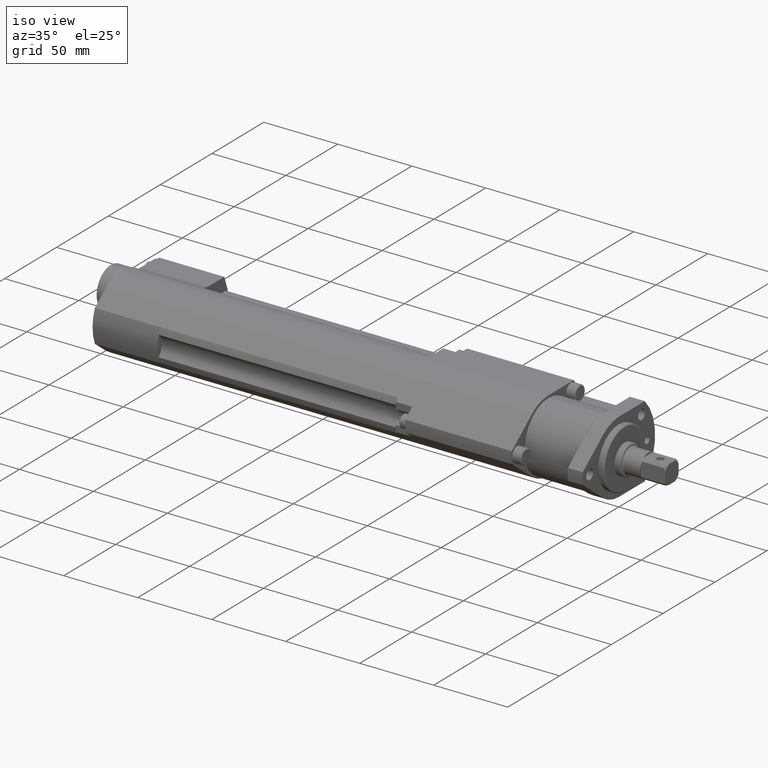
[diagram: clean part render]
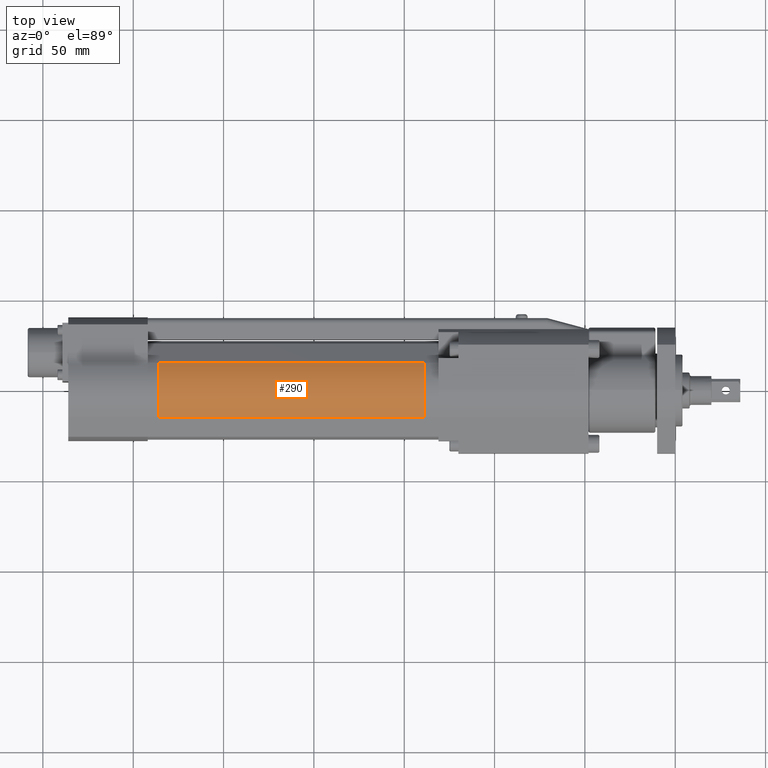
[diagram: tour spotlight — one face highlighted and labeled with its STEP entity id]
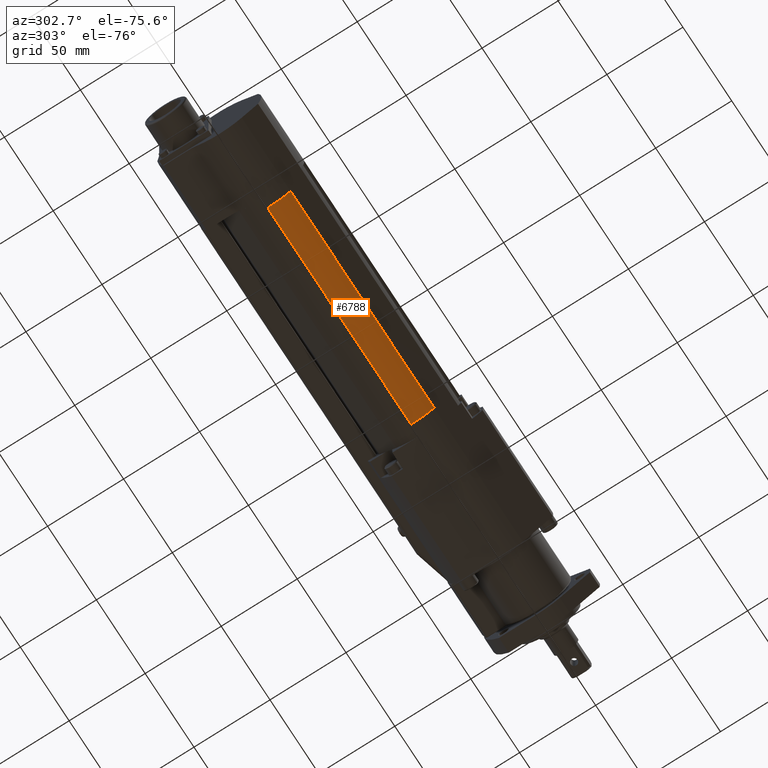
[diagram: tour spotlight — one face highlighted and labeled with its STEP entity id]
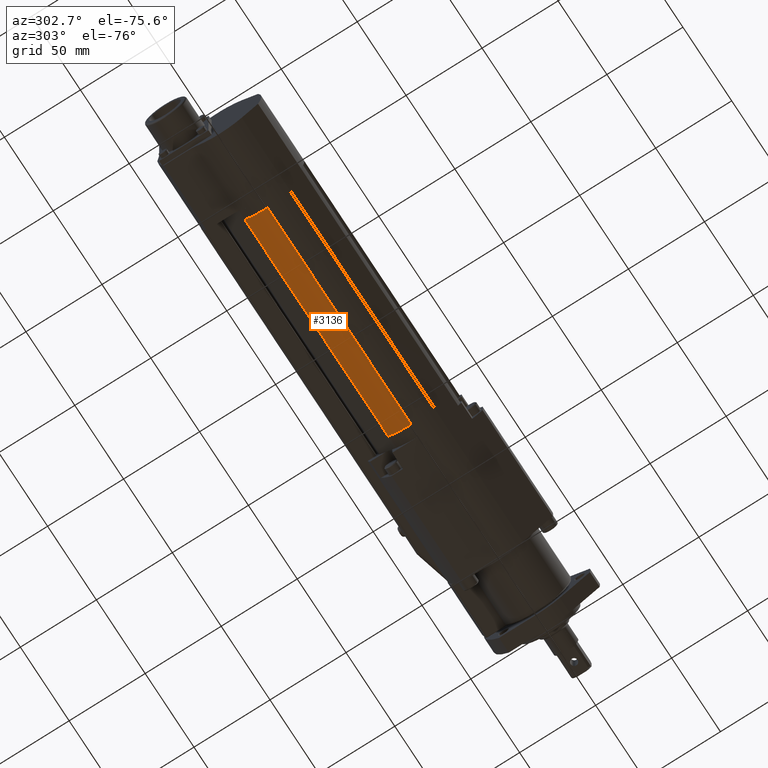
[diagram: tour spotlight — one face highlighted and labeled with its STEP entity id]
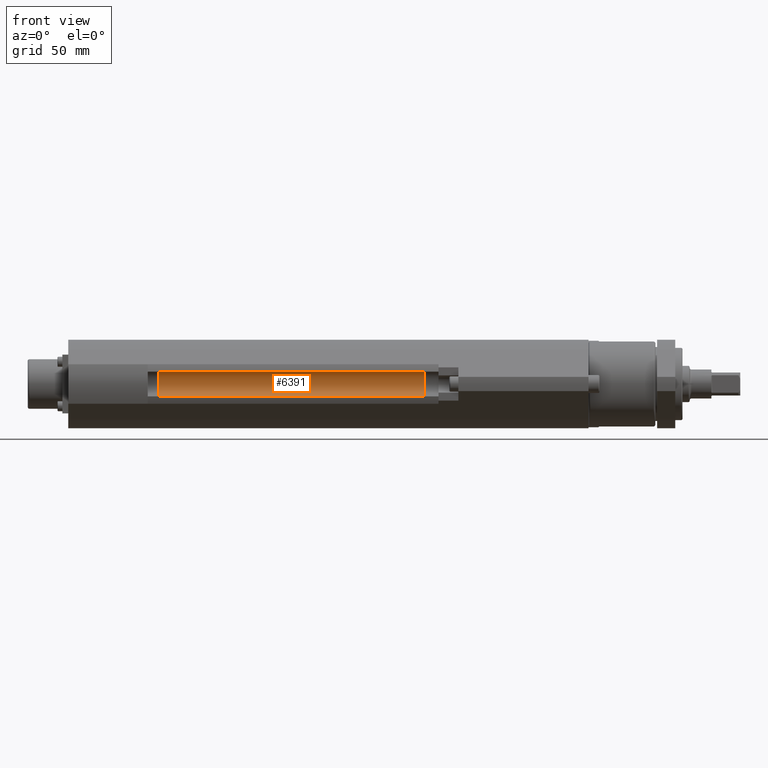
[diagram: tour spotlight — one face highlighted and labeled with its STEP entity id]
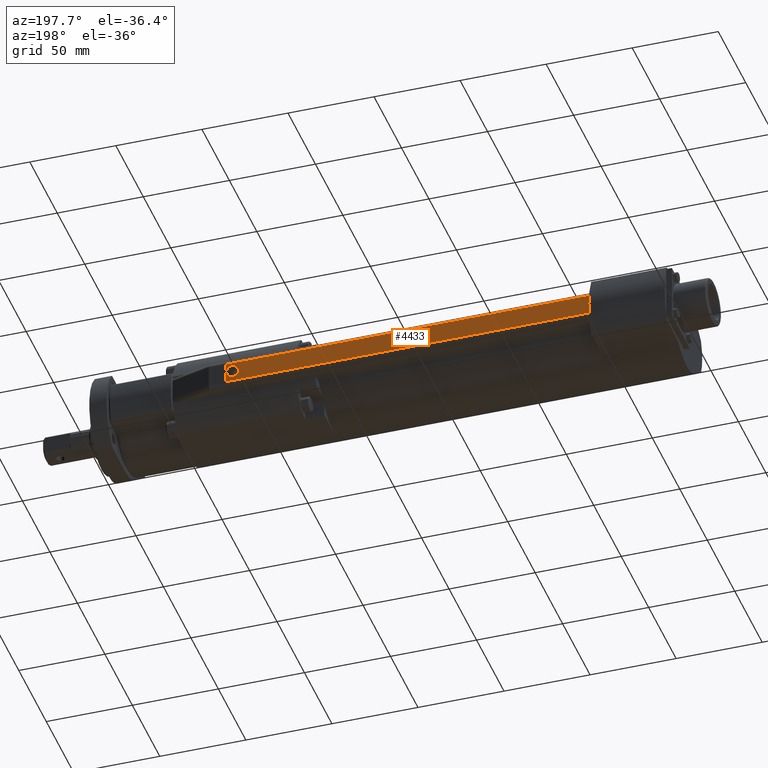
[diagram: tour spotlight — one face highlighted and labeled with its STEP entity id]
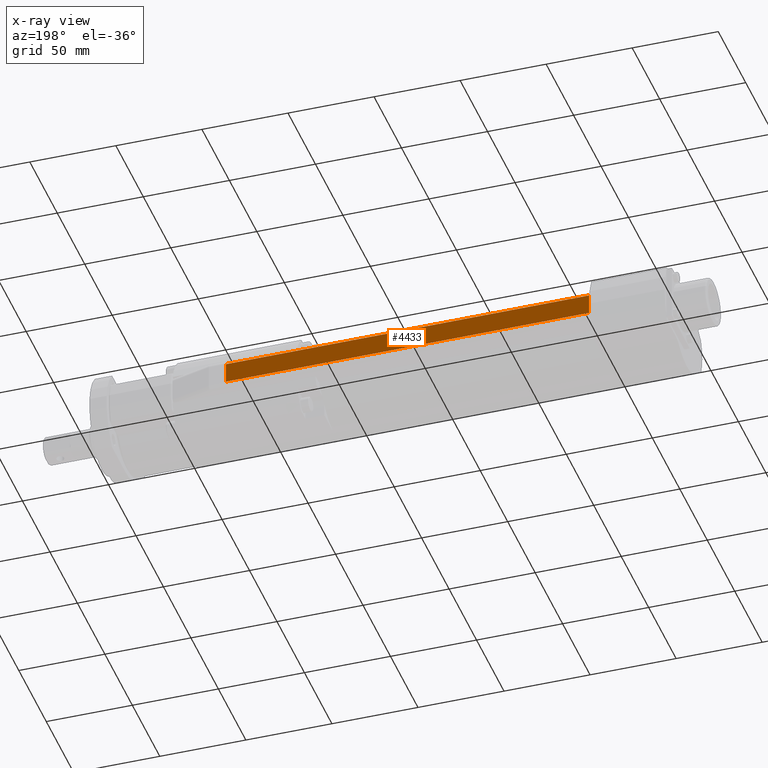
[diagram: x-ray of the same camera — body ghosted, this tour face saturated]
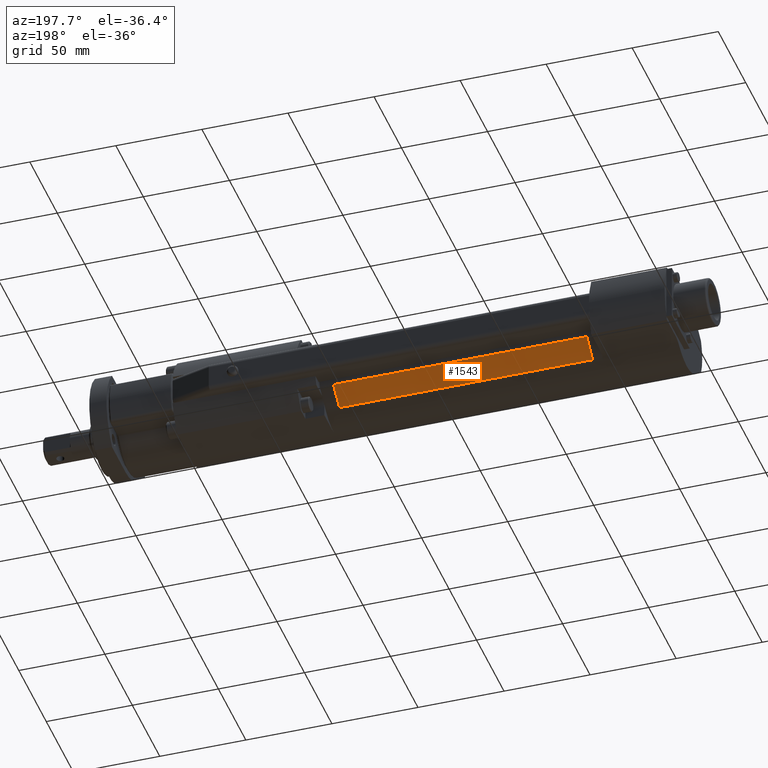
[diagram: tour spotlight — one face highlighted and labeled with its STEP entity id]
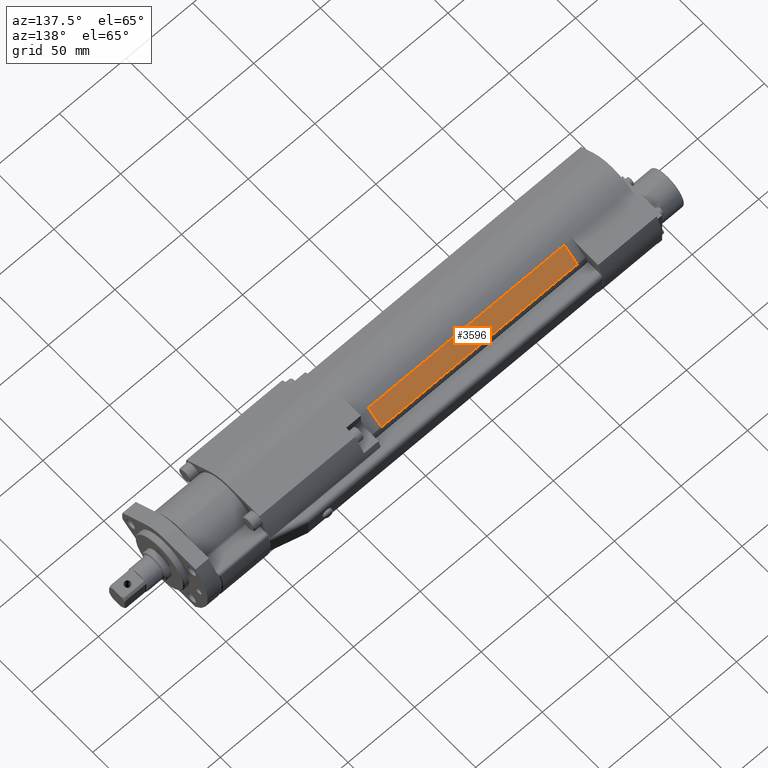
[diagram: tour spotlight — one face highlighted and labeled with its STEP entity id]
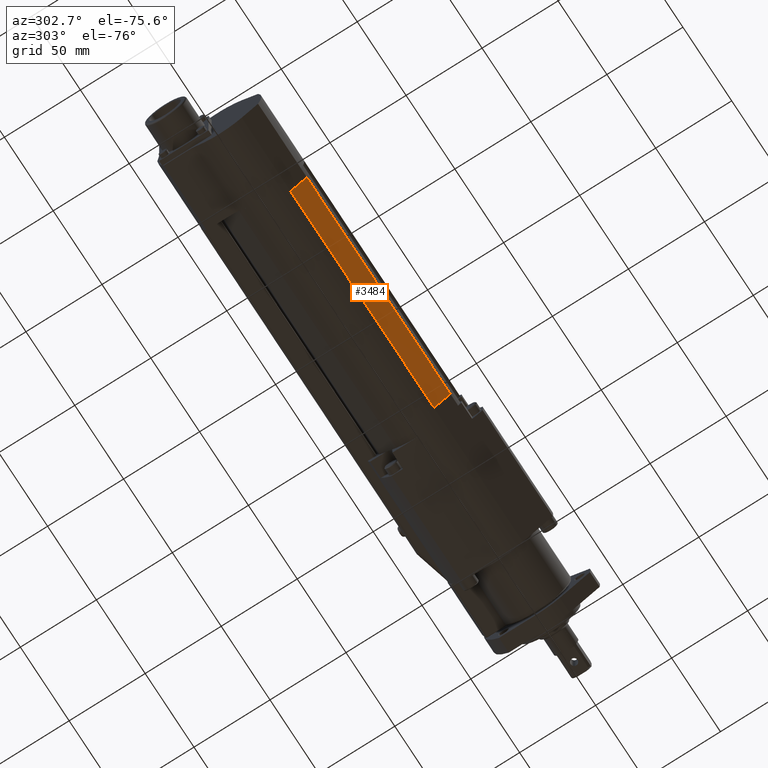
[diagram: tour spotlight — one face highlighted and labeled with its STEP entity id]
A machine part: a face-by-face anatomy tour. The part has 315 B-rep faces; the first image is the clean iso view, then the 8 largest visible faces are spotlighted one at a time (largest first), each with its STEP entity span.

Face 1 — top view, entity #290. In plain terms, the highlighted cylindrical surface (partial cylindrical patch) has radius 24.5 mm, axis along (1, -0, -0).
Definition (entity closure, byte-faithful):
#77 = ORIENTED_EDGE ( 'NONE', *, *, #2574, .T. ) ;
#246 = CARTESIAN_POINT ( 'NONE',  ( -286.0000000000000600, -15.08370614547866000, 19.30626346336466500 ) ) ;
#290 = ADVANCED_FACE ( 'NONE', ( #3501 ), #3282, .T. ) ;
#1392 = AXIS2_PLACEMENT_3D ( 'NONE', #5367, #3924, #8967 ) ;
#1411 = VECTOR ( 'NONE', #2846, 1000.000000000000000 ) ;
#2574 = EDGE_CURVE ( 'NONE', #6530, #5233, #5891, .T. ) ;
#2692 = EDGE_CURVE ( 'NONE', #4344, #5233, #9048, .T. ) ;
#2809 = ORIENTED_EDGE ( 'NONE', *, *, #2692, .F. ) ;
#2846 = DIRECTION ( 'NONE',  ( 1.000000000000000000, -0.0000000000000000000, -0.0000000000000000000 ) ) ;
#3035 = VERTEX_POINT ( 'NONE', #6361 ) ;
#3282 = CYLINDRICAL_SURFACE ( 'NONE', #1392, 24.50000000000000000 ) ;
#3296 = EDGE_CURVE ( 'NONE', #3035, #6530, #5759, .T. ) ;
#3436 = CARTESIAN_POINT ( 'NONE',  ( -139.0000000000000000, 0.0000000000000000000, 0.0000000000000000000 ) ) ;
#3492 = CARTESIAN_POINT ( 'NONE',  ( -286.0000000000000600, 15.08370614547865600, 19.30626346336466500 ) ) ;
#3501 = FACE_OUTER_BOUND ( 'NONE', #8920, .T. ) ;
#3610 = CARTESIAN_POINT ( 'NONE',  ( -139.0000000000000000, 15.08370614547865600, 19.30626346336466500 ) ) ;
#3769 = EDGE_CURVE ( 'NONE', #3035, #4344, #6428, .T. ) ;
#3872 = DIRECTION ( 'NONE',  ( -1.000000000000000000, 0.0000000000000000000, 0.0000000000000000000 ) ) ;
#3924 = DIRECTION ( 'NONE',  ( 1.000000000000000000, -0.0000000000000000000, -0.0000000000000000000 ) ) ;
#3994 = ORIENTED_EDGE ( 'NONE', *, *, #3296, .T. ) ;
#4160 = DIRECTION ( 'NONE',  ( 0.0000000000000000000, 0.0000000000000000000, 1.000000000000000000 ) ) ;
#4239 = AXIS2_PLACEMENT_3D ( 'NONE', #3436, #8489, #4160 ) ;
#4344 = VERTEX_POINT ( 'NONE', #3492 ) ;
#5233 = VERTEX_POINT ( 'NONE', #3610 ) ;
#5236 = ORIENTED_EDGE ( 'NONE', *, *, #3769, .F. ) ;
#5367 = CARTESIAN_POINT ( 'NONE',  ( -286.0000000000000600, 0.0000000000000000000, 0.0000000000000000000 ) ) ;
#5759 = LINE ( 'NONE', #246, #7437 ) ;
#5891 = CIRCLE ( 'NONE', #4239, 24.50000000000000000 ) ;
#6361 = CARTESIAN_POINT ( 'NONE',  ( -286.0000000000000600, -15.08370614547866000, 19.30626346336466500 ) ) ;
#6428 = CIRCLE ( 'NONE', #7386, 24.50000000000000000 ) ;
#6530 = VERTEX_POINT ( 'NONE', #8754 ) ;
#7386 = AXIS2_PLACEMENT_3D ( 'NONE', #8187, #3872, #8927 ) ;
#7408 = DIRECTION ( 'NONE',  ( 1.000000000000000000, -0.0000000000000000000, -0.0000000000000000000 ) ) ;
#7437 = VECTOR ( 'NONE', #7408, 1000.000000000000000 ) ;
#7873 = CARTESIAN_POINT ( 'NONE',  ( -286.0000000000000600, 15.08370614547865600, 19.30626346336466500 ) ) ;
#8187 = CARTESIAN_POINT ( 'NONE',  ( -286.0000000000000600, 0.0000000000000000000, 0.0000000000000000000 ) ) ;
#8489 = DIRECTION ( 'NONE',  ( -1.000000000000000000, 0.0000000000000000000, 0.0000000000000000000 ) ) ;
#8754 = CARTESIAN_POINT ( 'NONE',  ( -139.0000000000000000, -15.08370614547866000, 19.30626346336466500 ) ) ;
#8920 = EDGE_LOOP ( 'NONE', ( #77, #2809, #5236, #3994 ) ) ;
#8927 = DIRECTION ( 'NONE',  ( 0.0000000000000000000, 0.0000000000000000000, 1.000000000000000000 ) ) ;
#8967 = DIRECTION ( 'NONE',  ( 0.0000000000000000000, 0.0000000000000000000, -1.000000000000000000 ) ) ;
#9048 = LINE ( 'NONE', #7873, #1411 ) ;

Face 2 — auxiliary view, entity #6788. In plain terms, the highlighted cylindrical surface (partial cylindrical patch) has radius 24.5 mm, axis along (1, -0, -0).
Definition (entity closure, byte-faithful):
#7 = EDGE_CURVE ( 'NONE', #2189, #3952, #3174, .T. ) ;
#150 = DIRECTION ( 'NONE',  ( 1.000000000000000000, -0.0000000000000000000, -0.0000000000000000000 ) ) ;
#286 = DIRECTION ( 'NONE',  ( 0.0000000000000000000, 0.0000000000000000000, 1.000000000000000000 ) ) ;
#392 = CARTESIAN_POINT ( 'NONE',  ( -139.0000000000000000, 0.0000000000000000000, 0.0000000000000000000 ) ) ;
#548 = CARTESIAN_POINT ( 'NONE',  ( -139.0000000000000000, -15.08370614547865400, -19.30626346336466900 ) ) ;
#851 = EDGE_CURVE ( 'NONE', #8294, #3952, #6647, .T. ) ;
#1024 = VECTOR ( 'NONE', #8787, 1000.000000000000000 ) ;
#1098 = DIRECTION ( 'NONE',  ( 0.0000000000000000000, 0.0000000000000000000, 1.000000000000000000 ) ) ;
#1208 = EDGE_CURVE ( 'NONE', #2787, #2189, #5854, .T. ) ;
#1291 = VECTOR ( 'NONE', #150, 1000.000000000000000 ) ;
#1384 = ORIENTED_EDGE ( 'NONE', *, *, #851, .T. ) ;
#1403 = AXIS2_PLACEMENT_3D ( 'NONE', #1413, #6414, #5690 ) ;
#1413 = CARTESIAN_POINT ( 'NONE',  ( -286.0000000000000600, 0.0000000000000000000, 0.0000000000000000000 ) ) ;
#1552 = EDGE_CURVE ( 'NONE', #2787, #8294, #8662, .T. ) ;
#1637 = CARTESIAN_POINT ( 'NONE',  ( -286.0000000000000600, 0.0000000000000000000, -24.50000000000000000 ) ) ;
#1830 = CYLINDRICAL_SURFACE ( 'NONE', #1403, 24.50000000000000000 ) ;
#2046 = FACE_OUTER_BOUND ( 'NONE', #6433, .T. ) ;
#2189 = VERTEX_POINT ( 'NONE', #4850 ) ;
#2758 = CARTESIAN_POINT ( 'NONE',  ( -139.0000000000000000, 0.0000000000000000000, -24.50000000000000000 ) ) ;
#2787 = VERTEX_POINT ( 'NONE', #3933 ) ;
#2829 = ORIENTED_EDGE ( 'NONE', *, *, #1208, .F. ) ;
#3174 = LINE ( 'NONE', #7312, #1291 ) ;
#3933 = CARTESIAN_POINT ( 'NONE',  ( -286.0000000000000600, 0.0000000000000000000, -24.50000000000000000 ) ) ;
#3952 = VERTEX_POINT ( 'NONE', #548 ) ;
#4513 = ORIENTED_EDGE ( 'NONE', *, *, #7, .F. ) ;
#4545 = DIRECTION ( 'NONE',  ( -1.000000000000000000, 0.0000000000000000000, 0.0000000000000000000 ) ) ;
#4850 = CARTESIAN_POINT ( 'NONE',  ( -286.0000000000000600, -15.08370614547865400, -19.30626346336466900 ) ) ;
#5371 = DIRECTION ( 'NONE',  ( -1.000000000000000000, 0.0000000000000000000, 0.0000000000000000000 ) ) ;
#5690 = DIRECTION ( 'NONE',  ( 0.0000000000000000000, 0.0000000000000000000, -1.000000000000000000 ) ) ;
#5854 = CIRCLE ( 'NONE', #6436, 24.50000000000000000 ) ;
#6414 = DIRECTION ( 'NONE',  ( 1.000000000000000000, -0.0000000000000000000, -0.0000000000000000000 ) ) ;
#6433 = EDGE_LOOP ( 'NONE', ( #2829, #8161, #1384, #4513 ) ) ;
#6436 = AXIS2_PLACEMENT_3D ( 'NONE', #8862, #4545, #286 ) ;
#6647 = CIRCLE ( 'NONE', #8250, 24.50000000000000000 ) ;
#6788 = ADVANCED_FACE ( 'NONE', ( #2046 ), #1830, .T. ) ;
#7312 = CARTESIAN_POINT ( 'NONE',  ( -286.0000000000000600, -15.08370614547865400, -19.30626346336466900 ) ) ;
#8161 = ORIENTED_EDGE ( 'NONE', *, *, #1552, .T. ) ;
#8250 = AXIS2_PLACEMENT_3D ( 'NONE', #392, #5371, #1098 ) ;
#8294 = VERTEX_POINT ( 'NONE', #2758 ) ;
#8662 = LINE ( 'NONE', #1637, #1024 ) ;
#8787 = DIRECTION ( 'NONE',  ( 1.000000000000000000, -0.0000000000000000000, -0.0000000000000000000 ) ) ;
#8862 = CARTESIAN_POINT ( 'NONE',  ( -286.0000000000000600, 0.0000000000000000000, 0.0000000000000000000 ) ) ;

Face 3 — auxiliary view, entity #3136. In plain terms, the highlighted cylindrical surface (partial cylindrical patch) has radius 24.5 mm, axis along (1, -0, -0).
Definition (entity closure, byte-faithful):
#158 = DIRECTION ( 'NONE',  ( -1.000000000000000000, 0.0000000000000000000, 0.0000000000000000000 ) ) ;
#492 = CARTESIAN_POINT ( 'NONE',  ( -139.0000000000000000, 0.0000000000000000000, 0.0000000000000000000 ) ) ;
#1024 = VECTOR ( 'NONE', #8787, 1000.000000000000000 ) ;
#1099 = EDGE_CURVE ( 'NONE', #1700, #2787, #2698, .T. ) ;
#1203 = DIRECTION ( 'NONE',  ( 0.0000000000000000000, 0.0000000000000000000, 1.000000000000000000 ) ) ;
#1249 = EDGE_LOOP ( 'NONE', ( #4807, #2981, #3605, #1301 ) ) ;
#1301 = ORIENTED_EDGE ( 'NONE', *, *, #2085, .T. ) ;
#1399 = CYLINDRICAL_SURFACE ( 'NONE', #6319, 24.50000000000000000 ) ;
#1552 = EDGE_CURVE ( 'NONE', #2787, #8294, #8662, .T. ) ;
#1630 = AXIS2_PLACEMENT_3D ( 'NONE', #4420, #158, #5140 ) ;
#1637 = CARTESIAN_POINT ( 'NONE',  ( -286.0000000000000600, 0.0000000000000000000, -24.50000000000000000 ) ) ;
#1697 = EDGE_CURVE ( 'NONE', #1700, #5259, #3466, .T. ) ;
#1700 = VERTEX_POINT ( 'NONE', #2509 ) ;
#2085 = EDGE_CURVE ( 'NONE', #5259, #8294, #2462, .T. ) ;
#2462 = CIRCLE ( 'NONE', #5092, 24.50000000000000000 ) ;
#2509 = CARTESIAN_POINT ( 'NONE',  ( -286.0000000000000600, 15.08370614547865600, -19.30626346336466500 ) ) ;
#2698 = CIRCLE ( 'NONE', #1630, 24.50000000000000000 ) ;
#2758 = CARTESIAN_POINT ( 'NONE',  ( -139.0000000000000000, 0.0000000000000000000, -24.50000000000000000 ) ) ;
#2787 = VERTEX_POINT ( 'NONE', #3933 ) ;
#2879 = CARTESIAN_POINT ( 'NONE',  ( -286.0000000000000600, 0.0000000000000000000, 0.0000000000000000000 ) ) ;
#2981 = ORIENTED_EDGE ( 'NONE', *, *, #1099, .F. ) ;
#3136 = ADVANCED_FACE ( 'NONE', ( #5186 ), #1399, .T. ) ;
#3466 = LINE ( 'NONE', #8226, #5386 ) ;
#3605 = ORIENTED_EDGE ( 'NONE', *, *, #1697, .T. ) ;
#3933 = CARTESIAN_POINT ( 'NONE',  ( -286.0000000000000600, 0.0000000000000000000, -24.50000000000000000 ) ) ;
#4420 = CARTESIAN_POINT ( 'NONE',  ( -286.0000000000000600, 0.0000000000000000000, 0.0000000000000000000 ) ) ;
#4807 = ORIENTED_EDGE ( 'NONE', *, *, #1552, .F. ) ;
#5092 = AXIS2_PLACEMENT_3D ( 'NONE', #492, #5480, #1203 ) ;
#5140 = DIRECTION ( 'NONE',  ( 0.0000000000000000000, 0.0000000000000000000, 1.000000000000000000 ) ) ;
#5186 = FACE_OUTER_BOUND ( 'NONE', #1249, .T. ) ;
#5259 = VERTEX_POINT ( 'NONE', #5814 ) ;
#5386 = VECTOR ( 'NONE', #7524, 1000.000000000000000 ) ;
#5480 = DIRECTION ( 'NONE',  ( -1.000000000000000000, 0.0000000000000000000, 0.0000000000000000000 ) ) ;
#5814 = CARTESIAN_POINT ( 'NONE',  ( -139.0000000000000000, 15.08370614547865600, -19.30626346336466500 ) ) ;
#6319 = AXIS2_PLACEMENT_3D ( 'NONE', #2879, #6480, #7915 ) ;
#6480 = DIRECTION ( 'NONE',  ( 1.000000000000000000, -0.0000000000000000000, -0.0000000000000000000 ) ) ;
#7524 = DIRECTION ( 'NONE',  ( 1.000000000000000000, -0.0000000000000000000, -0.0000000000000000000 ) ) ;
#7915 = DIRECTION ( 'NONE',  ( 0.0000000000000000000, 0.0000000000000000000, -1.000000000000000000 ) ) ;
#8226 = CARTESIAN_POINT ( 'NONE',  ( -286.0000000000000600, 15.08370614547865600, -19.30626346336466500 ) ) ;
#8294 = VERTEX_POINT ( 'NONE', #2758 ) ;
#8662 = LINE ( 'NONE', #1637, #1024 ) ;
#8787 = DIRECTION ( 'NONE',  ( 1.000000000000000000, -0.0000000000000000000, -0.0000000000000000000 ) ) ;

Face 4 — front view, entity #6391. In plain terms, the highlighted cylindrical surface (edge-blend (fillet) strip) has radius 9 mm, axis along (1, -0, -0).
Definition (entity closure, byte-faithful):
#110 = CARTESIAN_POINT ( 'NONE',  ( -139.0000000000000000, -27.15151515151514900, -6.840703544010901600 ) ) ;
#125 = CARTESIAN_POINT ( 'NONE',  ( -139.0000000000000000, -33.00000000000000000, 0.0000000000000000000 ) ) ;
#131 = LINE ( 'NONE', #2830, #3688 ) ;
#144 = EDGE_LOOP ( 'NONE', ( #6878, #6791, #651, #5068 ) ) ;
#176 = VERTEX_POINT ( 'NONE', #4480 ) ;
#363 = CIRCLE ( 'NONE', #3600, 9.000000000000010700 ) ;
#651 = ORIENTED_EDGE ( 'NONE', *, *, #8625, .F. ) ;
#742 = DIRECTION ( 'NONE',  ( 1.000000000000000000, -0.0000000000000000000, -0.0000000000000000000 ) ) ;
#849 = DIRECTION ( 'NONE',  ( 0.0000000000000000000, 0.0000000000000000000, 1.000000000000000000 ) ) ;
#1747 = DIRECTION ( 'NONE',  ( 1.000000000000000000, -0.0000000000000000000, -0.0000000000000000000 ) ) ;
#1969 = EDGE_CURVE ( 'NONE', #9259, #9189, #9113, .T. ) ;
#2169 = DIRECTION ( 'NONE',  ( 0.0000000000000000000, 0.0000000000000000000, -1.000000000000000000 ) ) ;
#2225 = CIRCLE ( 'NONE', #7374, 9.000000000000010700 ) ;
#2830 = CARTESIAN_POINT ( 'NONE',  ( -286.0000000000000600, -27.15151515151514500, 6.840703544010898100 ) ) ;
#2857 = DIRECTION ( 'NONE',  ( 1.000000000000000000, -0.0000000000000000000, -0.0000000000000000000 ) ) ;
#3376 = FACE_OUTER_BOUND ( 'NONE', #144, .T. ) ;
#3600 = AXIS2_PLACEMENT_3D ( 'NONE', #125, #5114, #849 ) ;
#3688 = VECTOR ( 'NONE', #2857, 1000.000000000000000 ) ;
#3781 = DIRECTION ( 'NONE',  ( 1.000000000000000000, -0.0000000000000000000, -0.0000000000000000000 ) ) ;
#4454 = EDGE_CURVE ( 'NONE', #8801, #176, #131, .T. ) ;
#4480 = CARTESIAN_POINT ( 'NONE',  ( -139.0000000000000000, -27.15151515151514500, 6.840703544010898100 ) ) ;
#4834 = EDGE_CURVE ( 'NONE', #9189, #176, #363, .T. ) ;
#4835 = CYLINDRICAL_SURFACE ( 'NONE', #5587, 9.000000000000010700 ) ;
#5068 = ORIENTED_EDGE ( 'NONE', *, *, #1969, .T. ) ;
#5114 = DIRECTION ( 'NONE',  ( 1.000000000000000000, -0.0000000000000000000, -0.0000000000000000000 ) ) ;
#5587 = AXIS2_PLACEMENT_3D ( 'NONE', #6471, #742, #2169 ) ;
#5931 = CARTESIAN_POINT ( 'NONE',  ( -286.0000000000000600, -27.15151515151514900, -6.840703544010901600 ) ) ;
#6034 = CARTESIAN_POINT ( 'NONE',  ( -286.0000000000000600, -33.00000000000000000, 0.0000000000000000000 ) ) ;
#6391 = ADVANCED_FACE ( 'NONE', ( #3376 ), #4835, .F. ) ;
#6471 = CARTESIAN_POINT ( 'NONE',  ( -286.0000000000000600, -33.00000000000000000, 0.0000000000000000000 ) ) ;
#6757 = DIRECTION ( 'NONE',  ( 0.0000000000000000000, 0.0000000000000000000, 1.000000000000000000 ) ) ;
#6791 = ORIENTED_EDGE ( 'NONE', *, *, #4454, .F. ) ;
#6878 = ORIENTED_EDGE ( 'NONE', *, *, #4834, .T. ) ;
#6967 = VECTOR ( 'NONE', #3781, 1000.000000000000000 ) ;
#7351 = CARTESIAN_POINT ( 'NONE',  ( -286.0000000000000600, -27.15151515151514900, -6.840703544010901600 ) ) ;
#7374 = AXIS2_PLACEMENT_3D ( 'NONE', #6034, #1747, #6757 ) ;
#7663 = CARTESIAN_POINT ( 'NONE',  ( -286.0000000000000600, -27.15151515151514500, 6.840703544010898100 ) ) ;
#8625 = EDGE_CURVE ( 'NONE', #9259, #8801, #2225, .T. ) ;
#8801 = VERTEX_POINT ( 'NONE', #7663 ) ;
#9113 = LINE ( 'NONE', #5931, #6967 ) ;
#9189 = VERTEX_POINT ( 'NONE', #110 ) ;
#9259 = VERTEX_POINT ( 'NONE', #7351 ) ;

Face 5 — auxiliary view, entity #4433. An x-ray twin of the same camera follows (body ghosted, this face saturated) — the face is partly hidden behind the body. In plain terms, the highlighted planar face has unit normal (-0, -1, 0).
Definition (entity closure, byte-faithful):
#9 = LINE ( 'NONE', #1594, #7175 ) ;
#165 = CARTESIAN_POINT ( 'NONE',  ( -313.6333076527839700, 40.00000000000027700, 5.999999999999999100 ) ) ;
#570 = VERTEX_POINT ( 'NONE', #3401 ) ;
#708 = CARTESIAN_POINT ( 'NONE',  ( -292.0000000000000600, 40.00000000000024900, -5.999999999999999100 ) ) ;
#723 = DIRECTION ( 'NONE',  ( -1.156482317317871500E-015, -1.000000000000000000, 0.0000000000000000000 ) ) ;
#1594 = CARTESIAN_POINT ( 'NONE',  ( -81.00000000000000000, 40.00000000000000700, 5.999999999999999100 ) ) ;
#2118 = VECTOR ( 'NONE', #9300, 1000.000000000000000 ) ;
#2148 = VERTEX_POINT ( 'NONE', #4095 ) ;
#2195 = EDGE_LOOP ( 'NONE', ( #2669, #3289, #7045, #4915 ) ) ;
#2669 = ORIENTED_EDGE ( 'NONE', *, *, #8365, .F. ) ;
#2734 = VERTEX_POINT ( 'NONE', #708 ) ;
#3289 = ORIENTED_EDGE ( 'NONE', *, *, #7932, .T. ) ;
#3401 = CARTESIAN_POINT ( 'NONE',  ( -81.00000000000000000, 40.00000000000000700, -6.000000000000000000 ) ) ;
#3798 = LINE ( 'NONE', #165, #7399 ) ;
#3926 = FACE_OUTER_BOUND ( 'NONE', #2195, .T. ) ;
#4016 = LINE ( 'NONE', #7129, #2118 ) ;
#4095 = CARTESIAN_POINT ( 'NONE',  ( -292.0000000000000600, 40.00000000000024900, 5.999999999999999100 ) ) ;
#4136 = VECTOR ( 'NONE', #5798, 1000.000000000000000 ) ;
#4270 = PLANE ( 'NONE',  #6865 ) ;
#4433 = ADVANCED_FACE ( 'NONE', ( #3926 ), #4270, .F. ) ;
#4833 = EDGE_CURVE ( 'NONE', #2734, #570, #6297, .T. ) ;
#4915 = ORIENTED_EDGE ( 'NONE', *, *, #4833, .F. ) ;
#5150 = DIRECTION ( 'NONE',  ( 1.000000000000000000, -1.156482317317871500E-015, -0.0000000000000000000 ) ) ;
#5730 = DIRECTION ( 'NONE',  ( 1.000000000000000000, -1.156482317317871500E-015, 0.0000000000000000000 ) ) ;
#5798 = DIRECTION ( 'NONE',  ( 1.000000000000000000, -1.156482317317871500E-015, -0.0000000000000000000 ) ) ;
#6297 = LINE ( 'NONE', #6554, #4136 ) ;
#6462 = CARTESIAN_POINT ( 'NONE',  ( -81.00000000000000000, 40.00000000000000700, 5.999999999999999100 ) ) ;
#6554 = CARTESIAN_POINT ( 'NONE',  ( -313.6333076527839700, 40.00000000000027700, -6.000000000000000000 ) ) ;
#6865 = AXIS2_PLACEMENT_3D ( 'NONE', #9305, #723, #5730 ) ;
#7045 = ORIENTED_EDGE ( 'NONE', *, *, #7979, .T. ) ;
#7129 = CARTESIAN_POINT ( 'NONE',  ( -292.0000000000000600, 40.00000000000024900, 5.999999999999999100 ) ) ;
#7175 = VECTOR ( 'NONE', #8780, 1000.000000000000000 ) ;
#7399 = VECTOR ( 'NONE', #5150, 1000.000000000000000 ) ;
#7598 = VERTEX_POINT ( 'NONE', #6462 ) ;
#7932 = EDGE_CURVE ( 'NONE', #2148, #7598, #3798, .T. ) ;
#7979 = EDGE_CURVE ( 'NONE', #7598, #570, #9, .T. ) ;
#8365 = EDGE_CURVE ( 'NONE', #2148, #2734, #4016, .T. ) ;
#8780 = DIRECTION ( 'NONE',  ( 0.0000000000000000000, 0.0000000000000000000, -1.000000000000000000 ) ) ;
#9300 = DIRECTION ( 'NONE',  ( 0.0000000000000000000, 0.0000000000000000000, -1.000000000000000000 ) ) ;
#9305 = CARTESIAN_POINT ( 'NONE',  ( -313.6333076527839700, 40.00000000000027700, 5.999999999999999100 ) ) ;

Face 6 — auxiliary view, entity #1543. In plain terms, the highlighted planar face has unit normal (0, -0.6157, 0.788).
Definition (entity closure, byte-faithful):
#194 = PLANE ( 'NONE',  #450 ) ;
#450 = AXIS2_PLACEMENT_3D ( 'NONE', #5192, #917, #5921 ) ;
#493 = LINE ( 'NONE', #6236, #5969 ) ;
#580 = ORIENTED_EDGE ( 'NONE', *, *, #6256, .F. ) ;
#917 = DIRECTION ( 'NONE',  ( 0.0000000000000000000, -0.6156614753256595100, 0.7880107536067210100 ) ) ;
#1261 = VECTOR ( 'NONE', #3022, 1000.000000000000000 ) ;
#1480 = FACE_OUTER_BOUND ( 'NONE', #6966, .T. ) ;
#1536 = EDGE_CURVE ( 'NONE', #7569, #3182, #3144, .T. ) ;
#1543 = ADVANCED_FACE ( 'NONE', ( #1480 ), #194, .F. ) ;
#1697 = EDGE_CURVE ( 'NONE', #1700, #5259, #3466, .T. ) ;
#1700 = VERTEX_POINT ( 'NONE', #2509 ) ;
#1742 = VECTOR ( 'NONE', #6510, 1000.000000000000000 ) ;
#2191 = LINE ( 'NONE', #4319, #1742 ) ;
#2209 = CARTESIAN_POINT ( 'NONE',  ( -139.0000000000000000, 25.76553998420780500, -10.96070022043248200 ) ) ;
#2509 = CARTESIAN_POINT ( 'NONE',  ( -286.0000000000000600, 15.08370614547865600, -19.30626346336466500 ) ) ;
#3022 = DIRECTION ( 'NONE',  ( 1.000000000000000000, -0.0000000000000000000, -0.0000000000000000000 ) ) ;
#3144 = LINE ( 'NONE', #5157, #1261 ) ;
#3182 = VERTEX_POINT ( 'NONE', #2209 ) ;
#3466 = LINE ( 'NONE', #8226, #5386 ) ;
#4319 = CARTESIAN_POINT ( 'NONE',  ( -139.0000000000000000, 25.76553998420780500, -10.96070022043248200 ) ) ;
#4403 = ORIENTED_EDGE ( 'NONE', *, *, #9176, .T. ) ;
#4557 = ORIENTED_EDGE ( 'NONE', *, *, #1697, .F. ) ;
#5157 = CARTESIAN_POINT ( 'NONE',  ( -286.0000000000000600, 25.76553998420780500, -10.96070022043248200 ) ) ;
#5192 = CARTESIAN_POINT ( 'NONE',  ( -286.0000000000000600, 25.76553998420780500, -10.96070022043248200 ) ) ;
#5259 = VERTEX_POINT ( 'NONE', #5814 ) ;
#5386 = VECTOR ( 'NONE', #7524, 1000.000000000000000 ) ;
#5489 = DIRECTION ( 'NONE',  ( 0.0000000000000000000, -0.7880107536067210100, -0.6156614753256595100 ) ) ;
#5814 = CARTESIAN_POINT ( 'NONE',  ( -139.0000000000000000, 15.08370614547865600, -19.30626346336466500 ) ) ;
#5921 = DIRECTION ( 'NONE',  ( 0.0000000000000000000, -0.7880107536067210100, -0.6156614753256595100 ) ) ;
#5969 = VECTOR ( 'NONE', #5489, 1000.000000000000000 ) ;
#6236 = CARTESIAN_POINT ( 'NONE',  ( -286.0000000000000600, 25.76553998420780500, -10.96070022043248200 ) ) ;
#6256 = EDGE_CURVE ( 'NONE', #7569, #1700, #493, .T. ) ;
#6510 = DIRECTION ( 'NONE',  ( 0.0000000000000000000, -0.7880107536067210100, -0.6156614753256595100 ) ) ;
#6966 = EDGE_LOOP ( 'NONE', ( #4403, #4557, #580, #8701 ) ) ;
#7524 = DIRECTION ( 'NONE',  ( 1.000000000000000000, -0.0000000000000000000, -0.0000000000000000000 ) ) ;
#7569 = VERTEX_POINT ( 'NONE', #8567 ) ;
#8226 = CARTESIAN_POINT ( 'NONE',  ( -286.0000000000000600, 15.08370614547865600, -19.30626346336466500 ) ) ;
#8567 = CARTESIAN_POINT ( 'NONE',  ( -286.0000000000000600, 25.76553998420780500, -10.96070022043248200 ) ) ;
#8701 = ORIENTED_EDGE ( 'NONE', *, *, #1536, .T. ) ;
#9176 = EDGE_CURVE ( 'NONE', #3182, #5259, #2191, .T. ) ;

Face 7 — auxiliary view, entity #3596. In plain terms, the highlighted planar face has unit normal (0, -0.6157, -0.788).
Definition (entity closure, byte-faithful):
#711 = VECTOR ( 'NONE', #5193, 1000.000000000000100 ) ;
#824 = DIRECTION ( 'NONE',  ( 0.0000000000000000000, -0.6156614753256594000, -0.7880107536067211300 ) ) ;
#1070 = ORIENTED_EDGE ( 'NONE', *, *, #2692, .T. ) ;
#1411 = VECTOR ( 'NONE', #2846, 1000.000000000000000 ) ;
#1481 = LINE ( 'NONE', #7707, #5048 ) ;
#1523 = CARTESIAN_POINT ( 'NONE',  ( -286.0000000000000600, 15.08370614547865600, 19.30626346336466500 ) ) ;
#2447 = VERTEX_POINT ( 'NONE', #3259 ) ;
#2692 = EDGE_CURVE ( 'NONE', #4344, #5233, #9048, .T. ) ;
#2846 = DIRECTION ( 'NONE',  ( 1.000000000000000000, -0.0000000000000000000, -0.0000000000000000000 ) ) ;
#3060 = AXIS2_PLACEMENT_3D ( 'NONE', #1523, #824, #5833 ) ;
#3065 = CARTESIAN_POINT ( 'NONE',  ( -139.0000000000000000, 15.08370614547865600, 19.30626346336466500 ) ) ;
#3259 = CARTESIAN_POINT ( 'NONE',  ( -286.0000000000000600, 25.76553998420780500, 10.96070022043247900 ) ) ;
#3492 = CARTESIAN_POINT ( 'NONE',  ( -286.0000000000000600, 15.08370614547865600, 19.30626346336466500 ) ) ;
#3596 = ADVANCED_FACE ( 'NONE', ( #9026 ), #5100, .F. ) ;
#3610 = CARTESIAN_POINT ( 'NONE',  ( -139.0000000000000000, 15.08370614547865600, 19.30626346336466500 ) ) ;
#3685 = EDGE_CURVE ( 'NONE', #5233, #7154, #8107, .T. ) ;
#3922 = DIRECTION ( 'NONE',  ( 0.0000000000000000000, 0.7880107536067211300, -0.6156614753256594000 ) ) ;
#4301 = EDGE_CURVE ( 'NONE', #2447, #7154, #1481, .T. ) ;
#4344 = VERTEX_POINT ( 'NONE', #3492 ) ;
#4735 = EDGE_CURVE ( 'NONE', #4344, #2447, #6969, .T. ) ;
#5041 = VECTOR ( 'NONE', #3922, 1000.000000000000100 ) ;
#5048 = VECTOR ( 'NONE', #9170, 1000.000000000000000 ) ;
#5100 = PLANE ( 'NONE',  #3060 ) ;
#5193 = DIRECTION ( 'NONE',  ( 0.0000000000000000000, 0.7880107536067211300, -0.6156614753256594000 ) ) ;
#5233 = VERTEX_POINT ( 'NONE', #3610 ) ;
#5392 = CARTESIAN_POINT ( 'NONE',  ( -139.0000000000000000, 25.76553998420780500, 10.96070022043247900 ) ) ;
#5833 = DIRECTION ( 'NONE',  ( 0.0000000000000000000, 0.7880107536067211300, -0.6156614753256594000 ) ) ;
#5884 = ORIENTED_EDGE ( 'NONE', *, *, #4301, .F. ) ;
#6540 = ORIENTED_EDGE ( 'NONE', *, *, #3685, .T. ) ;
#6600 = EDGE_LOOP ( 'NONE', ( #6540, #5884, #8076, #1070 ) ) ;
#6969 = LINE ( 'NONE', #7506, #5041 ) ;
#7154 = VERTEX_POINT ( 'NONE', #5392 ) ;
#7506 = CARTESIAN_POINT ( 'NONE',  ( -286.0000000000000600, 15.08370614547865600, 19.30626346336466500 ) ) ;
#7707 = CARTESIAN_POINT ( 'NONE',  ( -286.0000000000000600, 25.76553998420780500, 10.96070022043247900 ) ) ;
#7873 = CARTESIAN_POINT ( 'NONE',  ( -286.0000000000000600, 15.08370614547865600, 19.30626346336466500 ) ) ;
#8076 = ORIENTED_EDGE ( 'NONE', *, *, #4735, .F. ) ;
#8107 = LINE ( 'NONE', #3065, #711 ) ;
#9026 = FACE_OUTER_BOUND ( 'NONE', #6600, .T. ) ;
#9048 = LINE ( 'NONE', #7873, #1411 ) ;
#9170 = DIRECTION ( 'NONE',  ( 1.000000000000000000, -0.0000000000000000000, -0.0000000000000000000 ) ) ;

Face 8 — auxiliary view, entity #3484. In plain terms, the highlighted planar face has unit normal (0, 0.6157, 0.788).
Definition (entity closure, byte-faithful):
#7 = EDGE_CURVE ( 'NONE', #2189, #3952, #3174, .T. ) ;
#150 = DIRECTION ( 'NONE',  ( 1.000000000000000000, -0.0000000000000000000, -0.0000000000000000000 ) ) ;
#164 = LINE ( 'NONE', #6419, #3958 ) ;
#548 = CARTESIAN_POINT ( 'NONE',  ( -139.0000000000000000, -15.08370614547865400, -19.30626346336466900 ) ) ;
#667 = AXIS2_PLACEMENT_3D ( 'NONE', #1427, #7867, #3549 ) ;
#722 = VERTEX_POINT ( 'NONE', #1468 ) ;
#764 = VERTEX_POINT ( 'NONE', #3834 ) ;
#1240 = EDGE_CURVE ( 'NONE', #2189, #722, #5396, .T. ) ;
#1291 = VECTOR ( 'NONE', #150, 1000.000000000000000 ) ;
#1427 = CARTESIAN_POINT ( 'NONE',  ( -286.0000000000000600, -15.08370614547865400, -19.30626346336466900 ) ) ;
#1468 = CARTESIAN_POINT ( 'NONE',  ( -286.0000000000000600, -25.76553998420780900, -10.96070022043247700 ) ) ;
#1690 = ORIENTED_EDGE ( 'NONE', *, *, #7, .T. ) ;
#2031 = DIRECTION ( 'NONE',  ( 0.0000000000000000000, -0.7880107536067207900, 0.6156614753256597300 ) ) ;
#2189 = VERTEX_POINT ( 'NONE', #4850 ) ;
#2208 = EDGE_CURVE ( 'NONE', #3952, #764, #8988, .T. ) ;
#2843 = PLANE ( 'NONE',  #667 ) ;
#3097 = EDGE_CURVE ( 'NONE', #722, #764, #164, .T. ) ;
#3140 = CARTESIAN_POINT ( 'NONE',  ( -286.0000000000000600, -15.08370614547865400, -19.30626346336466900 ) ) ;
#3174 = LINE ( 'NONE', #7312, #1291 ) ;
#3239 = ORIENTED_EDGE ( 'NONE', *, *, #2208, .T. ) ;
#3484 = ADVANCED_FACE ( 'NONE', ( #4385 ), #2843, .F. ) ;
#3539 = DIRECTION ( 'NONE',  ( 1.000000000000000000, -0.0000000000000000000, -0.0000000000000000000 ) ) ;
#3549 = DIRECTION ( 'NONE',  ( 0.0000000000000000000, -0.7880107536067207900, 0.6156614753256597300 ) ) ;
#3834 = CARTESIAN_POINT ( 'NONE',  ( -139.0000000000000000, -25.76553998420780900, -10.96070022043247700 ) ) ;
#3861 = DIRECTION ( 'NONE',  ( 0.0000000000000000000, -0.7880107536067207900, 0.6156614753256597300 ) ) ;
#3952 = VERTEX_POINT ( 'NONE', #548 ) ;
#3958 = VECTOR ( 'NONE', #3539, 1000.000000000000000 ) ;
#4385 = FACE_OUTER_BOUND ( 'NONE', #8718, .T. ) ;
#4850 = CARTESIAN_POINT ( 'NONE',  ( -286.0000000000000600, -15.08370614547865400, -19.30626346336466900 ) ) ;
#5396 = LINE ( 'NONE', #3140, #9014 ) ;
#6419 = CARTESIAN_POINT ( 'NONE',  ( -286.0000000000000600, -25.76553998420780900, -10.96070022043247700 ) ) ;
#7049 = CARTESIAN_POINT ( 'NONE',  ( -139.0000000000000000, -15.08370614547865400, -19.30626346336466900 ) ) ;
#7284 = VECTOR ( 'NONE', #2031, 999.9999999999998900 ) ;
#7312 = CARTESIAN_POINT ( 'NONE',  ( -286.0000000000000600, -15.08370614547865400, -19.30626346336466900 ) ) ;
#7453 = ORIENTED_EDGE ( 'NONE', *, *, #3097, .F. ) ;
#7608 = ORIENTED_EDGE ( 'NONE', *, *, #1240, .F. ) ;
#7867 = DIRECTION ( 'NONE',  ( 0.0000000000000000000, 0.6156614753256597300, 0.7880107536067207900 ) ) ;
#8718 = EDGE_LOOP ( 'NONE', ( #3239, #7453, #7608, #1690 ) ) ;
#8988 = LINE ( 'NONE', #7049, #7284 ) ;
#9014 = VECTOR ( 'NONE', #3861, 999.9999999999998900 ) ;